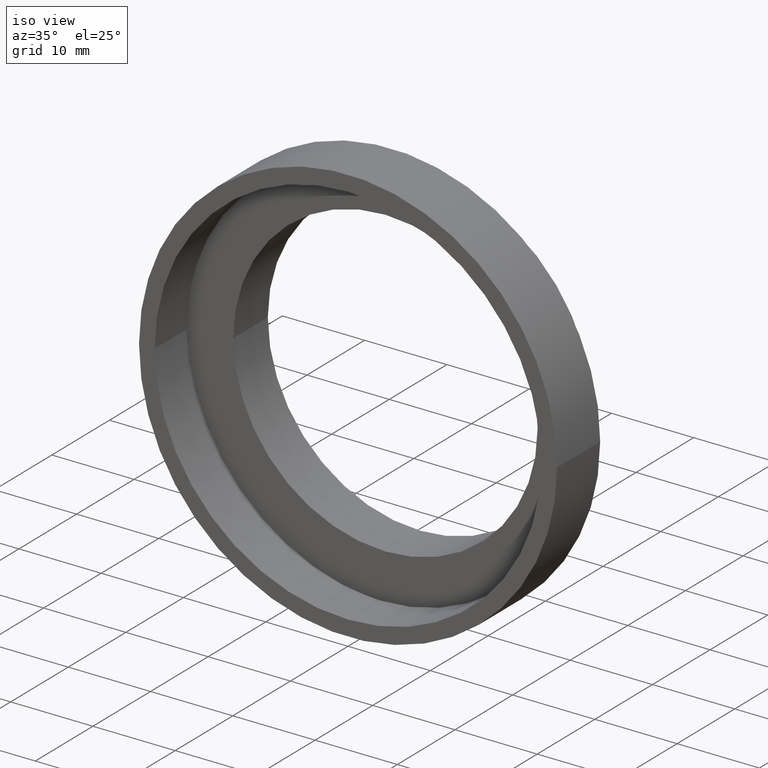
[diagram: clean part render]
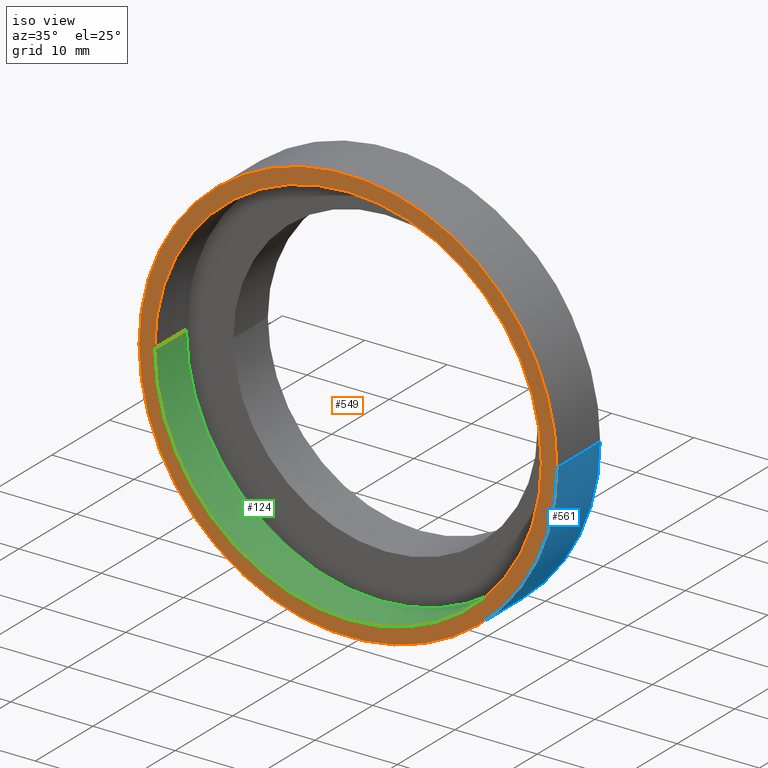
[diagram: same view with three faces highlighted in distinct colors, each labeled with its STEP entity id]
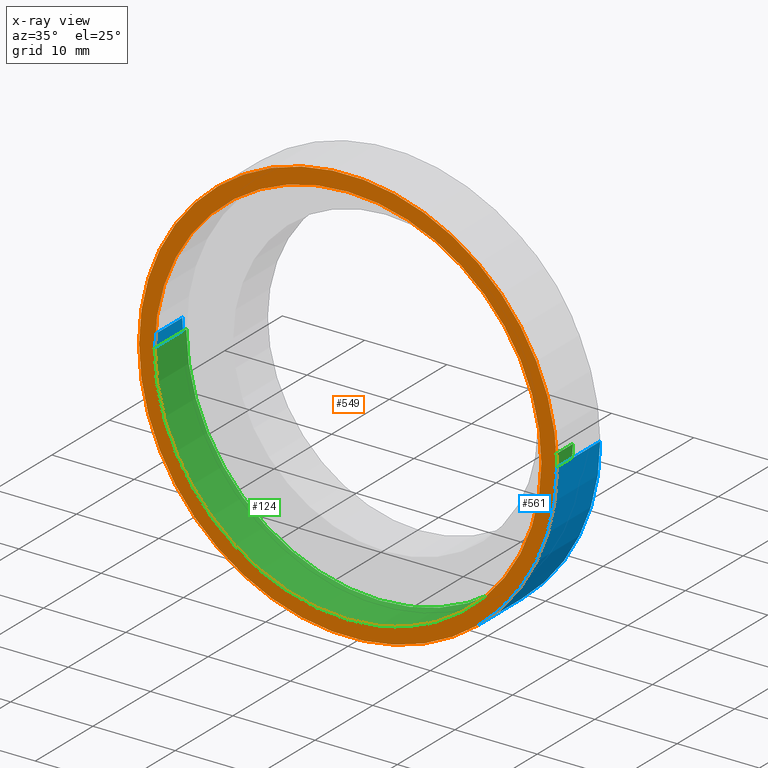
[diagram: x-ray of the same camera — body ghosted, the three highlighted faces saturated]
A machine part, iso view with three faces highlighted in distinct colors.
The next image is the same camera in x-ray (body ghosted, the three faces saturated) — at least one of them is partly hidden behind the body in this view.
Their STEP definitions:

[orange] entity #549 — the highlighted planar face has unit normal (-0, 1, 0).
#21 = ORIENTED_EDGE ( 'NONE', *, *, #605, .F. ) ;
#22 = AXIS2_PLACEMENT_3D ( 'NONE', #141, #133, #132 ) ;
#40 = VERTEX_POINT ( 'NONE', #546 ) ;
#49 = CARTESIAN_POINT ( 'NONE',  ( 2.067940818438636500E-015, -3.469446951953614200E-015, 0.0000000000000000000 ) ) ;
#56 = DIRECTION ( 'NONE',  ( -1.000000000000000000, -1.224646799147351000E-016, 0.0000000000000000000 ) ) ;
#64 = DIRECTION ( 'NONE',  ( -1.224646799147351000E-016, 1.000000000000000000, 0.0000000000000000000 ) ) ;
#76 = CARTESIAN_POINT ( 'NONE',  ( 25.39999999999999900, -1.592040838891564000E-016, 0.0000000000000000000 ) ) ;
#83 = PLANE ( 'NONE',  #573 ) ;
#89 = VERTEX_POINT ( 'NONE', #365 ) ;
#121 = CIRCLE ( 'NONE', #177, 25.39999999999999500 ) ;
#132 = DIRECTION ( 'NONE',  ( -1.000000000000000000, -1.224646799147351200E-016, 0.0000000000000000000 ) ) ;
#133 = DIRECTION ( 'NONE',  ( -1.224646799147351000E-016, 1.000000000000000000, -0.0000000000000000000 ) ) ;
#141 = CARTESIAN_POINT ( 'NONE',  ( 2.067940818438636500E-015, -3.469446951953614200E-015, 0.0000000000000000000 ) ) ;
#165 = ORIENTED_EDGE ( 'NONE', *, *, #334, .F. ) ;
#177 = AXIS2_PLACEMENT_3D ( 'NONE', #49, #239, #395 ) ;
#218 = FACE_BOUND ( 'NONE', #438, .T. ) ;
#227 = CIRCLE ( 'NONE', #22, 23.50000000000000000 ) ;
#239 = DIRECTION ( 'NONE',  ( -1.224646799147351000E-016, 1.000000000000000000, -0.0000000000000000000 ) ) ;
#242 = CARTESIAN_POINT ( 'NONE',  ( 2.067940818438636500E-015, -3.469446951953614200E-015, 0.0000000000000000000 ) ) ;
#244 = VERTEX_POINT ( 'NONE', #458 ) ;
#247 = DIRECTION ( 'NONE',  ( -1.224646799147351000E-016, 1.000000000000000000, -0.0000000000000000000 ) ) ;
#251 = DIRECTION ( 'NONE',  ( -1.000000000000000000, -1.224646799147351200E-016, 0.0000000000000000000 ) ) ;
#266 = FACE_OUTER_BOUND ( 'NONE', #483, .T. ) ;
#306 = CIRCLE ( 'NONE', #348, 23.50000000000000000 ) ;
#334 = EDGE_CURVE ( 'NONE', #596, #89, #513, .T. ) ;
#348 = AXIS2_PLACEMENT_3D ( 'NONE', #242, #247, #251 ) ;
#352 = DIRECTION ( 'NONE',  ( -1.000000000000000000, -1.224646799147351000E-016, 0.0000000000000000000 ) ) ;
#357 = AXIS2_PLACEMENT_3D ( 'NONE', #545, #381, #352 ) ;
#365 = CARTESIAN_POINT ( 'NONE',  ( 25.39999999999999900, -3.588440821193433400E-016, 3.110602869834276900E-015 ) ) ;
#381 = DIRECTION ( 'NONE',  ( -1.224646799147351000E-016, 1.000000000000000000, -0.0000000000000000000 ) ) ;
#395 = DIRECTION ( 'NONE',  ( -1.000000000000000000, -1.224646799147351000E-016, 0.0000000000000000000 ) ) ;
#426 = EDGE_CURVE ( 'NONE', #40, #244, #306, .T. ) ;
#438 = EDGE_LOOP ( 'NONE', ( #491, #614 ) ) ;
#458 = CARTESIAN_POINT ( 'NONE',  ( -23.49999999999999600, -6.347366929949889400E-015, 0.0000000000000000000 ) ) ;
#483 = EDGE_LOOP ( 'NONE', ( #165, #21 ) ) ;
#487 = CARTESIAN_POINT ( 'NONE',  ( -25.39999999999999100, -6.580049821787884700E-015, 0.0000000000000000000 ) ) ;
#491 = ORIENTED_EDGE ( 'NONE', *, *, #496, .T. ) ;
#496 = EDGE_CURVE ( 'NONE', #244, #40, #227, .T. ) ;
#513 = CIRCLE ( 'NONE', #357, 25.39999999999999500 ) ;
#545 = CARTESIAN_POINT ( 'NONE',  ( 2.067940818438636500E-015, -3.469446951953614200E-015, 0.0000000000000000000 ) ) ;
#546 = CARTESIAN_POINT ( 'NONE',  ( 23.50000000000000700, -5.915269739573390000E-016, 2.877919977996281100E-015 ) ) ;
#549 = ADVANCED_FACE ( 'NONE', ( #266, #218 ), #83, .F. ) ;
#573 = AXIS2_PLACEMENT_3D ( 'NONE', #76, #64, #56 ) ;
#596 = VERTEX_POINT ( 'NONE', #487 ) ;
#605 = EDGE_CURVE ( 'NONE', #89, #596, #121, .T. ) ;
#614 = ORIENTED_EDGE ( 'NONE', *, *, #426, .T. ) ;

[blue] entity #561 — the highlighted cylindrical surface (partial cylindrical patch) has radius 25.4 mm, axis along (-0, 1, -0).
#20 = ORIENTED_EDGE ( 'NONE', *, *, #605, .T. ) ;
#23 = EDGE_CURVE ( 'NONE', #596, #617, #610, .T. ) ;
#41 = DIRECTION ( 'NONE',  ( -1.224646799147351000E-016, 1.000000000000000000, -0.0000000000000000000 ) ) ;
#44 = CARTESIAN_POINT ( 'NONE',  ( -25.39999999999999900, 16.88601823708207300, 0.0000000000000000000 ) ) ;
#48 = DIRECTION ( 'NONE',  ( -1.000000000000000000, -1.365923996832131600E-016, 0.0000000000000000000 ) ) ;
#49 = CARTESIAN_POINT ( 'NONE',  ( 2.067940818438636500E-015, -3.469446951953614200E-015, 0.0000000000000000000 ) ) ;
#51 = DIRECTION ( 'NONE',  ( -1.224646799147351000E-016, 1.000000000000000000, -0.0000000000000000000 ) ) ;
#61 = EDGE_LOOP ( 'NONE', ( #559, #20, #480, #310 ) ) ;
#80 = CARTESIAN_POINT ( 'NONE',  ( 0.0000000000000000000, 16.88601823708207700, 0.0000000000000000000 ) ) ;
#89 = VERTEX_POINT ( 'NONE', #365 ) ;
#93 = EDGE_CURVE ( 'NONE', #89, #461, #336, .T. ) ;
#118 = DIRECTION ( 'NONE',  ( -1.000000000000000000, -1.365923996832131600E-016, 0.0000000000000000000 ) ) ;
#120 = DIRECTION ( 'NONE',  ( -1.224646799147351000E-016, 1.000000000000000000, -0.0000000000000000000 ) ) ;
#121 = CIRCLE ( 'NONE', #177, 25.39999999999999500 ) ;
#123 = CARTESIAN_POINT ( 'NONE',  ( 1.149455719078123100E-015, 7.499999999999996400, 0.0000000000000000000 ) ) ;
#177 = AXIS2_PLACEMENT_3D ( 'NONE', #49, #239, #395 ) ;
#200 = CYLINDRICAL_SURFACE ( 'NONE', #507, 25.39999999999999900 ) ;
#205 = AXIS2_PLACEMENT_3D ( 'NONE', #123, #120, #118 ) ;
#222 = FACE_OUTER_BOUND ( 'NONE', #61, .T. ) ;
#230 = CIRCLE ( 'NONE', #205, 25.39999999999999900 ) ;
#239 = DIRECTION ( 'NONE',  ( -1.224646799147351000E-016, 1.000000000000000000, -0.0000000000000000000 ) ) ;
#262 = DIRECTION ( 'NONE',  ( -1.224646799147351000E-016, 1.000000000000000000, -0.0000000000000000000 ) ) ;
#272 = CARTESIAN_POINT ( 'NONE',  ( 25.39999999999999900, 7.500000000000000000, 3.110602869834276900E-015 ) ) ;
#310 = ORIENTED_EDGE ( 'NONE', *, *, #509, .F. ) ;
#311 = CARTESIAN_POINT ( 'NONE',  ( 25.39999999999999900, 16.88601823708208000, 3.110602869834276900E-015 ) ) ;
#336 = LINE ( 'NONE', #311, #356 ) ;
#356 = VECTOR ( 'NONE', #262, 1000.000000000000000 ) ;
#365 = CARTESIAN_POINT ( 'NONE',  ( 25.39999999999999900, -3.588440821193433400E-016, 3.110602869834276900E-015 ) ) ;
#395 = DIRECTION ( 'NONE',  ( -1.000000000000000000, -1.224646799147351000E-016, 0.0000000000000000000 ) ) ;
#461 = VERTEX_POINT ( 'NONE', #272 ) ;
#480 = ORIENTED_EDGE ( 'NONE', *, *, #23, .T. ) ;
#487 = CARTESIAN_POINT ( 'NONE',  ( -25.39999999999999100, -6.580049821787884700E-015, 0.0000000000000000000 ) ) ;
#507 = AXIS2_PLACEMENT_3D ( 'NONE', #80, #41, #48 ) ;
#509 = EDGE_CURVE ( 'NONE', #461, #617, #230, .T. ) ;
#519 = VECTOR ( 'NONE', #51, 1000.000000000000000 ) ;
#537 = CARTESIAN_POINT ( 'NONE',  ( -25.39999999999999900, 7.499999999999992900, 0.0000000000000000000 ) ) ;
#559 = ORIENTED_EDGE ( 'NONE', *, *, #93, .F. ) ;
#561 = ADVANCED_FACE ( 'NONE', ( #222 ), #200, .T. ) ;
#596 = VERTEX_POINT ( 'NONE', #487 ) ;
#605 = EDGE_CURVE ( 'NONE', #89, #596, #121, .T. ) ;
#610 = LINE ( 'NONE', #44, #519 ) ;
#617 = VERTEX_POINT ( 'NONE', #537 ) ;

[green] entity #124 — the highlighted cylindrical surface (partial cylindrical patch) has radius 23.5 mm, axis along (-0, 1, -0).
#8 = ORIENTED_EDGE ( 'NONE', *, *, #541, .F. ) ;
#33 = AXIS2_PLACEMENT_3D ( 'NONE', #232, #479, #578 ) ;
#40 = VERTEX_POINT ( 'NONE', #546 ) ;
#90 = DIRECTION ( 'NONE',  ( -1.224646799147351000E-016, 1.000000000000000000, -0.0000000000000000000 ) ) ;
#124 = ADVANCED_FACE ( 'NONE', ( #331 ), #416, .F. ) ;
#146 = CARTESIAN_POINT ( 'NONE',  ( -23.50000000000000000, 16.88601823708207300, 0.0000000000000000000 ) ) ;
#188 = CARTESIAN_POINT ( 'NONE',  ( 23.50000000000000700, 5.499999999999999100, 2.877919977996281100E-015 ) ) ;
#217 = EDGE_LOOP ( 'NONE', ( #255, #523, #552, #8 ) ) ;
#232 = CARTESIAN_POINT ( 'NONE',  ( 0.0000000000000000000, 16.88601823708207700, 0.0000000000000000000 ) ) ;
#236 = EDGE_CURVE ( 'NONE', #40, #534, #288, .T. ) ;
#242 = CARTESIAN_POINT ( 'NONE',  ( 2.067940818438636500E-015, -3.469446951953614200E-015, 0.0000000000000000000 ) ) ;
#243 = AXIS2_PLACEMENT_3D ( 'NONE', #332, #619, #340 ) ;
#244 = VERTEX_POINT ( 'NONE', #458 ) ;
#247 = DIRECTION ( 'NONE',  ( -1.224646799147351000E-016, 1.000000000000000000, -0.0000000000000000000 ) ) ;
#251 = DIRECTION ( 'NONE',  ( -1.000000000000000000, -1.224646799147351200E-016, 0.0000000000000000000 ) ) ;
#254 = LINE ( 'NONE', #146, #441 ) ;
#255 = ORIENTED_EDGE ( 'NONE', *, *, #426, .F. ) ;
#288 = LINE ( 'NONE', #453, #434 ) ;
#306 = CIRCLE ( 'NONE', #348, 23.50000000000000000 ) ;
#328 = EDGE_CURVE ( 'NONE', #534, #405, #608, .T. ) ;
#331 = FACE_OUTER_BOUND ( 'NONE', #217, .T. ) ;
#332 = CARTESIAN_POINT ( 'NONE',  ( 1.394385078907593200E-015, 5.499999999999996400, 0.0000000000000000000 ) ) ;
#340 = DIRECTION ( 'NONE',  ( -1.000000000000000000, -1.107270303814983000E-016, 0.0000000000000000000 ) ) ;
#342 = CARTESIAN_POINT ( 'NONE',  ( -23.50000000000000400, 5.499999999999993800, 0.0000000000000000000 ) ) ;
#348 = AXIS2_PLACEMENT_3D ( 'NONE', #242, #247, #251 ) ;
#405 = VERTEX_POINT ( 'NONE', #342 ) ;
#416 = CYLINDRICAL_SURFACE ( 'NONE', #33, 23.50000000000000000 ) ;
#426 = EDGE_CURVE ( 'NONE', #40, #244, #306, .T. ) ;
#434 = VECTOR ( 'NONE', #450, 1000.000000000000000 ) ;
#441 = VECTOR ( 'NONE', #90, 1000.000000000000000 ) ;
#450 = DIRECTION ( 'NONE',  ( -1.224646799147351000E-016, 1.000000000000000000, -0.0000000000000000000 ) ) ;
#453 = CARTESIAN_POINT ( 'NONE',  ( 23.50000000000000000, 16.88601823708208000, 2.877919977996280300E-015 ) ) ;
#458 = CARTESIAN_POINT ( 'NONE',  ( -23.49999999999999600, -6.347366929949889400E-015, 0.0000000000000000000 ) ) ;
#479 = DIRECTION ( 'NONE',  ( -1.224646799147351000E-016, 1.000000000000000000, -0.0000000000000000000 ) ) ;
#523 = ORIENTED_EDGE ( 'NONE', *, *, #236, .T. ) ;
#534 = VERTEX_POINT ( 'NONE', #188 ) ;
#541 = EDGE_CURVE ( 'NONE', #244, #405, #254, .T. ) ;
#546 = CARTESIAN_POINT ( 'NONE',  ( 23.50000000000000700, -5.915269739573390000E-016, 2.877919977996281100E-015 ) ) ;
#552 = ORIENTED_EDGE ( 'NONE', *, *, #328, .T. ) ;
#578 = DIRECTION ( 'NONE',  ( -1.000000000000000000, -1.476360405086644300E-016, 0.0000000000000000000 ) ) ;
#608 = CIRCLE ( 'NONE', #243, 23.50000000000000400 ) ;
#619 = DIRECTION ( 'NONE',  ( -1.224646799147351000E-016, 1.000000000000000000, -0.0000000000000000000 ) ) ;